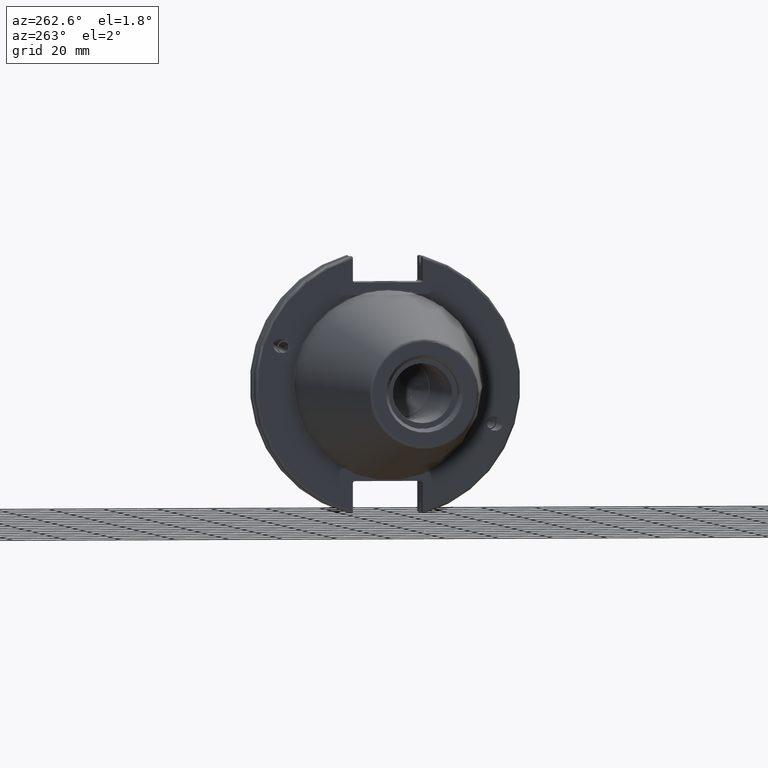
[diagram: clean part render]
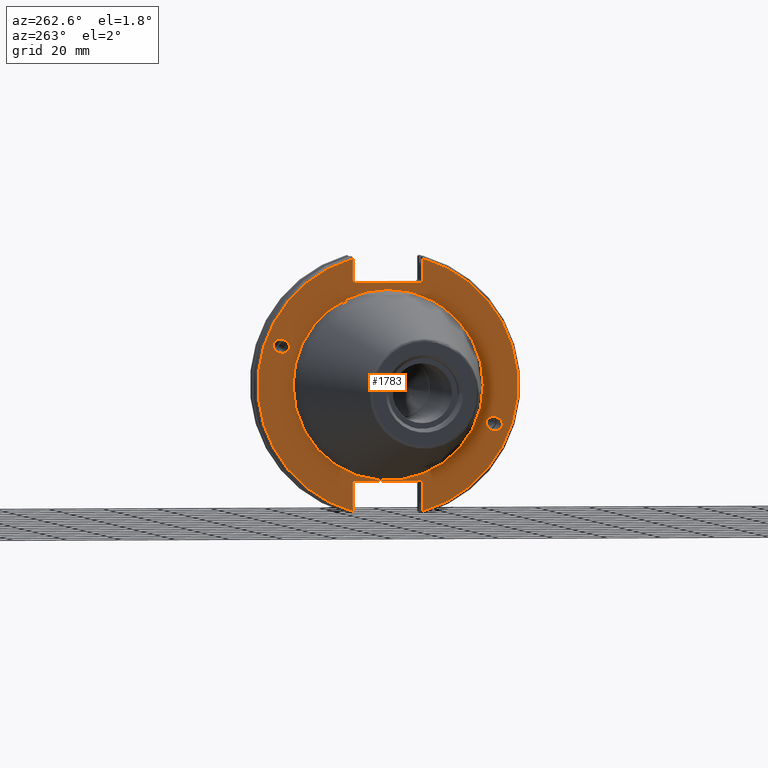
[diagram: same view with one face highlighted and labeled with its STEP entity id]
A machine part, auxiliary view. The second image highlights one B-rep face of the part: STEP entity #1783.
In plain terms, the highlighted planar face has unit normal (-1, 0, 0).
Its self-contained STEP definition (entity closure, byte-faithful):
#124=FACE_BOUND('',#333,.T.);
#125=FACE_BOUND('',#334,.T.);
#126=FACE_BOUND('',#335,.T.);
#134=ELLIPSE('',#1933,3.05193647190364,2.5);
#135=ELLIPSE('',#1972,3.05193647190364,2.5);
#149=PLANE('',#1985);
#222=FACE_OUTER_BOUND('',#332,.T.);
#332=EDGE_LOOP('',(#1459,#1460,#1461,#1462,#1463,#1464,#1465,#1466,#1467,
#1468,#1469,#1470));
#333=EDGE_LOOP('',(#1471));
#334=EDGE_LOOP('',(#1472));
#335=EDGE_LOOP('',(#1473,#1474));
#434=LINE('',#3315,#532);
#435=LINE('',#3317,#533);
#436=LINE('',#3319,#534);
#437=LINE('',#3321,#535);
#438=LINE('',#3323,#536);
#439=LINE('',#3327,#537);
#440=LINE('',#3329,#538);
#441=LINE('',#3331,#539);
#442=LINE('',#3333,#540);
#443=LINE('',#3334,#541);
#532=VECTOR('',#2395,10.);
#533=VECTOR('',#2396,10.);
#534=VECTOR('',#2397,10.);
#535=VECTOR('',#2398,10.);
#536=VECTOR('',#2399,10.);
#537=VECTOR('',#2402,10.);
#538=VECTOR('',#2403,10.);
#539=VECTOR('',#2404,10.);
#540=VECTOR('',#2405,10.);
#541=VECTOR('',#2406,10.);
#658=CIRCLE('',#1981,35.125);
#659=CIRCLE('',#1982,35.125);
#662=CIRCLE('',#1986,48.2125);
#663=CIRCLE('',#1987,48.2125);
#779=VERTEX_POINT('',#3016);
#822=VERTEX_POINT('',#3285);
#828=VERTEX_POINT('',#3302);
#829=VERTEX_POINT('',#3304);
#831=VERTEX_POINT('',#3311);
#832=VERTEX_POINT('',#3312);
#833=VERTEX_POINT('',#3314);
#834=VERTEX_POINT('',#3316);
#835=VERTEX_POINT('',#3318);
#836=VERTEX_POINT('',#3320);
#837=VERTEX_POINT('',#3322);
#838=VERTEX_POINT('',#3324);
#839=VERTEX_POINT('',#3326);
#840=VERTEX_POINT('',#3328);
#841=VERTEX_POINT('',#3330);
#842=VERTEX_POINT('',#3332);
#995=EDGE_CURVE('',#779,#779,#134,.T.);
#1051=EDGE_CURVE('',#822,#822,#135,.T.);
#1059=EDGE_CURVE('',#828,#829,#658,.T.);
#1060=EDGE_CURVE('',#829,#828,#659,.T.);
#1063=EDGE_CURVE('',#831,#832,#662,.T.);
#1064=EDGE_CURVE('',#831,#833,#434,.T.);
#1065=EDGE_CURVE('',#834,#833,#435,.T.);
#1066=EDGE_CURVE('',#834,#835,#436,.T.);
#1067=EDGE_CURVE('',#836,#835,#437,.T.);
#1068=EDGE_CURVE('',#836,#837,#438,.T.);
#1069=EDGE_CURVE('',#838,#837,#663,.T.);
#1070=EDGE_CURVE('',#838,#839,#439,.T.);
#1071=EDGE_CURVE('',#840,#839,#440,.T.);
#1072=EDGE_CURVE('',#840,#841,#441,.T.);
#1073=EDGE_CURVE('',#842,#841,#442,.T.);
#1074=EDGE_CURVE('',#842,#832,#443,.T.);
#1459=ORIENTED_EDGE('',*,*,#1063,.F.);
#1460=ORIENTED_EDGE('',*,*,#1064,.T.);
#1461=ORIENTED_EDGE('',*,*,#1065,.F.);
#1462=ORIENTED_EDGE('',*,*,#1066,.T.);
#1463=ORIENTED_EDGE('',*,*,#1067,.F.);
#1464=ORIENTED_EDGE('',*,*,#1068,.T.);
#1465=ORIENTED_EDGE('',*,*,#1069,.F.);
#1466=ORIENTED_EDGE('',*,*,#1070,.T.);
#1467=ORIENTED_EDGE('',*,*,#1071,.F.);
#1468=ORIENTED_EDGE('',*,*,#1072,.T.);
#1469=ORIENTED_EDGE('',*,*,#1073,.F.);
#1470=ORIENTED_EDGE('',*,*,#1074,.T.);
#1471=ORIENTED_EDGE('',*,*,#995,.T.);
#1472=ORIENTED_EDGE('',*,*,#1051,.T.);
#1473=ORIENTED_EDGE('',*,*,#1060,.F.);
#1474=ORIENTED_EDGE('',*,*,#1059,.F.);
#1783=ADVANCED_FACE('',(#222,#124,#125,#126),#149,.T.);
#1933=AXIS2_PLACEMENT_3D('',#3018,#2269,#2270);
#1972=AXIS2_PLACEMENT_3D('',#3287,#2363,#2364);
#1981=AXIS2_PLACEMENT_3D('',#3305,#2383,#2384);
#1982=AXIS2_PLACEMENT_3D('',#3306,#2385,#2386);
#1985=AXIS2_PLACEMENT_3D('',#3310,#2391,#2392);
#1986=AXIS2_PLACEMENT_3D('',#3313,#2393,#2394);
#1987=AXIS2_PLACEMENT_3D('',#3325,#2400,#2401);
#2269=DIRECTION('center_axis',(1.,0.,0.));
#2270=DIRECTION('ref_axis',(0.,-0.939692620785908,-0.342020143325668));
#2363=DIRECTION('center_axis',(1.,0.,0.));
#2364=DIRECTION('ref_axis',(0.,0.939692620785908,0.342020143325669));
#2383=DIRECTION('center_axis',(-1.,0.,0.));
#2384=DIRECTION('ref_axis',(0.,-1.,1.83697019872103E-16));
#2385=DIRECTION('center_axis',(-1.,0.,0.));
#2386=DIRECTION('ref_axis',(0.,-1.,1.83697019872103E-16));
#2391=DIRECTION('center_axis',(-1.,0.,0.));
#2392=DIRECTION('ref_axis',(0.,0.,1.));
#2393=DIRECTION('center_axis',(1.,0.,0.));
#2394=DIRECTION('ref_axis',(0.,-1.,1.60812264967664E-16));
#2395=DIRECTION('',(0.,0.,-1.));
#2396=DIRECTION('',(0.,-0.707106781186549,0.707106781186546));
#2397=DIRECTION('',(0.,1.,0.));
#2398=DIRECTION('',(0.,-0.707106781186549,-0.707106781186546));
#2399=DIRECTION('',(0.,0.,1.));
#2400=DIRECTION('center_axis',(1.,0.,0.));
#2401=DIRECTION('ref_axis',(0.,1.,-6.12323399573677E-17));
#2402=DIRECTION('',(0.,0.,1.));
#2403=DIRECTION('',(0.,0.707106781186549,-0.707106781186546));
#2404=DIRECTION('',(0.,-1.,0.));
#2405=DIRECTION('',(0.,0.707106781186549,0.707106781186546));
#2406=DIRECTION('',(0.,0.,-1.));
#3016=CARTESIAN_POINT('',(3.175,-36.5992078912529,-13.3210222701368));
#3018=CARTESIAN_POINT('Origin',(3.175,-39.4670900730082,-14.3648460196781));
#3285=CARTESIAN_POINT('',(3.175,36.5992078912529,13.3210222701368));
#3287=CARTESIAN_POINT('Origin',(3.175,39.4670900730082,14.3648460196781));
#3302=CARTESIAN_POINT('',(3.175,-4.30157188200508E-15,35.125));
#3304=CARTESIAN_POINT('',(3.175,35.125,-1.07539297050127E-14));
#3305=CARTESIAN_POINT('Origin',(3.175,0.,0.));
#3306=CARTESIAN_POINT('Origin',(3.175,0.,0.));
#3310=CARTESIAN_POINT('Origin',(3.175,49.2125,0.));
#3311=CARTESIAN_POINT('',(3.175,-12.95,46.4407434937254));
#3312=CARTESIAN_POINT('',(3.175,-12.95,-46.4407434937254));
#3313=CARTESIAN_POINT('Origin',(3.175,0.,0.));
#3314=CARTESIAN_POINT('',(3.175,-12.95,38.219));
#3315=CARTESIAN_POINT('',(3.175,-12.95,18.8595));
#3316=CARTESIAN_POINT('',(3.175,-12.45,37.719));
#3317=CARTESIAN_POINT('',(3.175,12.2703750000001,12.998625));
#3318=CARTESIAN_POINT('',(3.175,12.45,37.719));
#3319=CARTESIAN_POINT('',(3.175,24.60625,37.719));
#3320=CARTESIAN_POINT('',(3.175,12.95,38.219));
#3321=CARTESIAN_POINT('',(3.175,12.335875,37.604875));
#3322=CARTESIAN_POINT('',(3.175,12.95,46.4407434937254));
#3323=CARTESIAN_POINT('',(3.175,12.95,18.8595));
#3324=CARTESIAN_POINT('',(3.175,12.95,-46.4407434937254));
#3325=CARTESIAN_POINT('Origin',(3.175,0.,0.));
#3326=CARTESIAN_POINT('',(3.175,12.95,-35.806));
#3327=CARTESIAN_POINT('',(3.175,12.95,-17.653));
#3328=CARTESIAN_POINT('',(3.175,12.45,-35.306));
#3329=CARTESIAN_POINT('',(3.175,12.939125,-35.795125));
#3330=CARTESIAN_POINT('',(3.175,-12.45,-35.306));
#3331=CARTESIAN_POINT('',(3.175,24.60625,-35.306));
#3332=CARTESIAN_POINT('',(3.175,-12.95,-35.806));
#3333=CARTESIAN_POINT('',(3.175,11.6671250000001,-11.188875));
#3334=CARTESIAN_POINT('',(3.175,-12.95,-17.653));